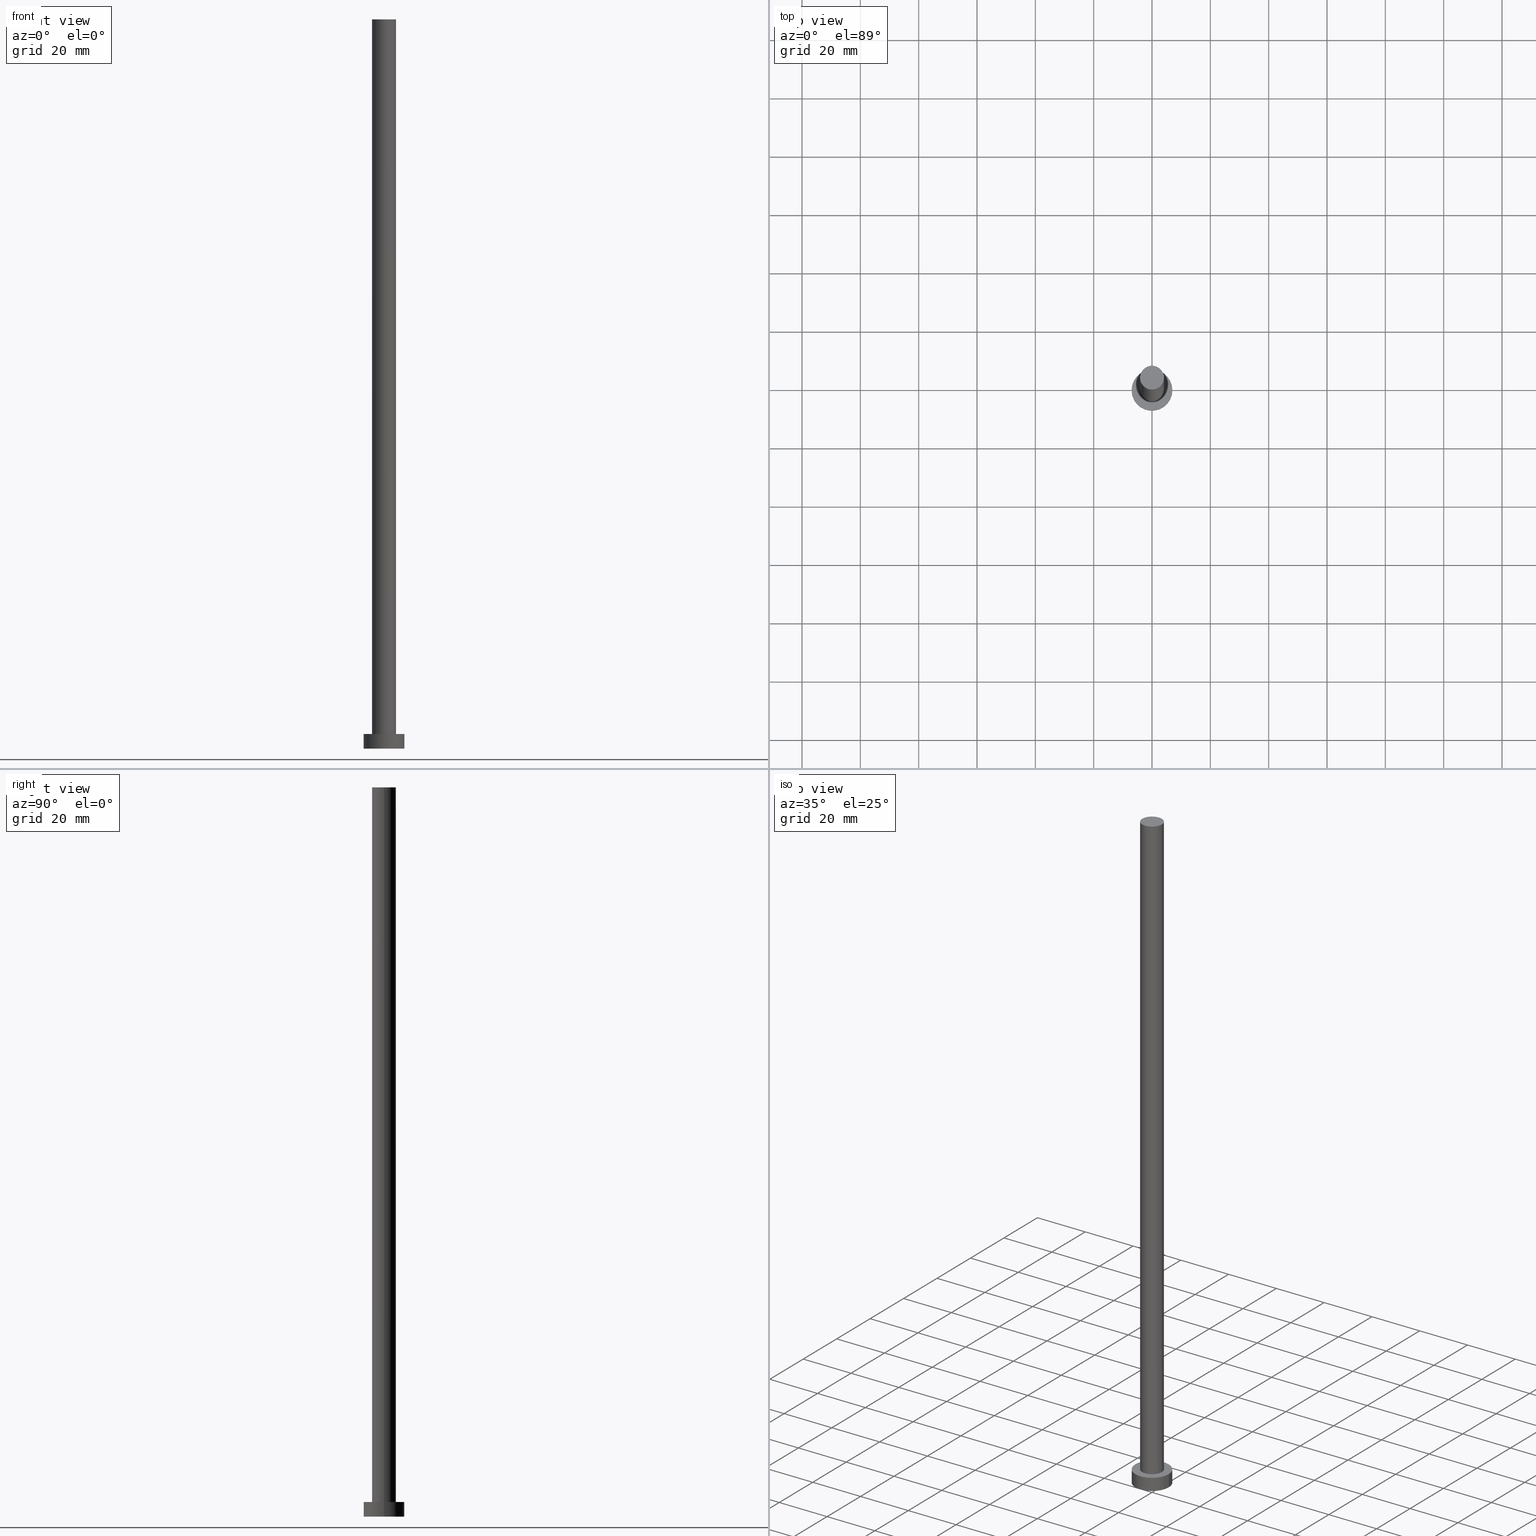
[diagram: canonical four-view strip — front | top / right | iso, engineering-drawing reading convention]
A machine part, canonical four-view strip (front | top / right | iso — engineering-drawing reading convention). The complete STEP part file that produces these views, byte-faithful:
ISO-10303-21;
HEADER;
FILE_DESCRIPTION (( 'STEP AP203' ),
    '1' );
FILE_NAME ('8e17.STEP',
    '2023-02-13T14:21:05',
    ( '' ),
    ( '' ),
    'SwSTEP 2.0',
    'SolidWorks 2019',
    '' );
FILE_SCHEMA (( 'CONFIG_CONTROL_DESIGN' ));
ENDSEC;

DATA;
#1 = CARTESIAN_POINT ( 'NONE',  ( -7.000000000000000000, 0.000000000000000000, 5.000000000000000000 ) ) ;
#2 = PERSON_AND_ORGANIZATION ( #9, #13 ) ;
#3 = EDGE_CURVE ( 'NONE', #57, #202, #38, .T. ) ;
#4 = ADVANCED_BREP_SHAPE_REPRESENTATION ( '8e17', ( #51, #233 ), #199 ) ;
#5 = EDGE_LOOP ( 'NONE', ( #111, #179 ) ) ;
#6 = CIRCLE ( 'NONE', #28, 4.099999999999999645 ) ;
#7 = ORIENTED_EDGE ( 'NONE', *, *, #165, .F. ) ;
#8 = APPROVAL_STATUS ( 'not_yet_approved' ) ;
#9 = PERSON ( 'NEUR�EN�', 'NEUR�EN�', 'NEUR�EN�', ('NEUR�EN�'), ('NEUR�EN�'), ('NEUR�EN�') ) ;
#10 = ORIENTED_EDGE ( 'NONE', *, *, #208, .T. ) ;
#11 = CALENDAR_DATE ( 2023, 13, 2 ) ;
#12 = APPROVAL_DATE_TIME ( #146, #43 ) ;
#13 = ORGANIZATION ( 'NEUR�EN�', 'NEUR�EN�', '' ) ;
#14 = LOCAL_TIME ( 15, 21, 5.000000000000000000, #74 ) ;
#15 = APPROVAL_DATE_TIME ( #222, #236 ) ;
#16 = ADVANCED_FACE ( 'NONE', ( #84 ), #237, .F. ) ;
#17 = CARTESIAN_POINT ( 'NONE',  ( -4.099999999999999645, 0.000000000000000000, 250.0000000000000000 ) ) ;
#18 = CARTESIAN_POINT ( 'NONE',  ( 0.000000000000000000, 0.000000000000000000, 250.0000000000000000 ) ) ;
#19 = PRODUCT_RELATED_PRODUCT_CATEGORY ( 'detail', '', ( #33 ) ) ;
#20 = DIRECTION ( 'NONE',  ( 1.000000000000000000, 0.000000000000000000, 0.000000000000000000 ) ) ;
#21 = DIRECTION ( 'NONE',  ( 0.000000000000000000, 0.000000000000000000, 1.000000000000000000 ) ) ;
#22 = EDGE_CURVE ( 'NONE', #202, #201, #138, .T. ) ;
#23 = CARTESIAN_POINT ( 'NONE',  ( -7.000000000000000000, 0.000000000000000000, 5.000000000000000000 ) ) ;
#24 = CIRCLE ( 'NONE', #162, 7.000000000000000000 ) ;
#25 = ADVANCED_FACE ( 'NONE', ( #136 ), #77, .T. ) ;
#26 = COORDINATED_UNIVERSAL_TIME_OFFSET ( 1, 0, .AHEAD. ) ;
#27 = ORIENTED_EDGE ( 'NONE', *, *, #141, .T. ) ;
#28 = AXIS2_PLACEMENT_3D ( 'NONE', #150, #211, #253 ) ;
#29 = VERTEX_POINT ( 'NONE', #174 ) ;
#30 = EDGE_LOOP ( 'NONE', ( #7, #242, #10, #217 ) ) ;
#31 = CC_DESIGN_DATE_AND_TIME_ASSIGNMENT ( #226, #99, ( #131 ) ) ;
#32 = ORIENTED_EDGE ( 'NONE', *, *, #141, .F. ) ;
#33 = PRODUCT ( '8e17', '8e17', '', ( #40 ) ) ;
#34 = CC_DESIGN_DATE_AND_TIME_ASSIGNMENT ( #155, #89, ( #58 ) ) ;
#35 = PERSON_AND_ORGANIZATION_ROLE ( 'classification_officer' ) ;
#36 = CALENDAR_DATE ( 2023, 13, 2 ) ;
#37 = PERSON_AND_ORGANIZATION ( #9, #13 ) ;
#38 = CIRCLE ( 'NONE', #73, 4.099999999999999645 ) ;
#39 = APPROVAL_ROLE ( '' ) ;
#40 = MECHANICAL_CONTEXT ( 'NONE', #156, 'mechanical' ) ;
#41 = DIRECTION ( 'NONE',  ( 1.000000000000000000, 0.000000000000000000, 0.000000000000000000 ) ) ;
#42 = CARTESIAN_POINT ( 'NONE',  ( 4.099999999999999645, 5.021051876504147385E-16, 250.0000000000000000 ) ) ;
#43 = APPROVAL ( #8, 'NEUR�EN�' ) ;
#44 = DIRECTION ( 'NONE',  ( -0.000000000000000000, -0.000000000000000000, -1.000000000000000000 ) ) ;
#45 = DIRECTION ( 'NONE',  ( 1.000000000000000000, 0.000000000000000000, -0.000000000000000000 ) ) ;
#46 = DIRECTION ( 'NONE',  ( 1.000000000000000000, 0.000000000000000000, 0.000000000000000000 ) ) ;
#47 = CLOSED_SHELL ( 'NONE', ( #194, #176, #25, #223, #16, #135, #169 ) ) ;
#48 = EDGE_LOOP ( 'NONE', ( #144, #198, #159, #116 ) ) ;
#49 = EDGE_CURVE ( 'NONE', #57, #114, #101, .T. ) ;
#50 = ORIENTED_EDGE ( 'NONE', *, *, #208, .F. ) ;
#51 = MANIFOLD_SOLID_BREP ( 'P�idat vysunut�m3', #47 ) ;
#52 = CIRCLE ( 'NONE', #207, 7.000000000000000000 ) ;
#53 = APPROVAL_PERSON_ORGANIZATION ( #249, #126, #104 ) ;
#54 = CC_DESIGN_SECURITY_CLASSIFICATION ( #131, ( #130 ) ) ;
#55 =( NAMED_UNIT ( * ) SI_UNIT ( $, .STERADIAN. ) SOLID_ANGLE_UNIT ( ) );
#56 = ORIENTED_EDGE ( 'NONE', *, *, #165, .T. ) ;
#57 = VERTEX_POINT ( 'NONE', #152 ) ;
#58 = PRODUCT_DEFINITION ( 'NEZN�M�', '', #130, #225 ) ;
#59 = AXIS2_PLACEMENT_3D ( 'NONE', #241, #70, #67 ) ;
#60 = CARTESIAN_POINT ( 'NONE',  ( 0.000000000000000000, 0.000000000000000000, 250.0000000000000000 ) ) ;
#61 = CYLINDRICAL_SURFACE ( 'NONE', #64, 4.099999999999999645 ) ;
#62 = CARTESIAN_POINT ( 'NONE',  ( 0.000000000000000000, 0.000000000000000000, 250.0000000000000000 ) ) ;
#63 = APPLICATION_PROTOCOL_DEFINITION ( 'international standard', 'config_control_design', 1994, #156 ) ;
#64 = AXIS2_PLACEMENT_3D ( 'NONE', #60, #230, #107 ) ;
#65 = CARTESIAN_POINT ( 'NONE',  ( 0.000000000000000000, 0.000000000000000000, 0.000000000000000000 ) ) ;
#66 = DIRECTION ( 'NONE',  ( -0.000000000000000000, -0.000000000000000000, -1.000000000000000000 ) ) ;
#67 = DIRECTION ( 'NONE',  ( 1.000000000000000000, 0.000000000000000000, 0.000000000000000000 ) ) ;
#68 = ORIENTED_EDGE ( 'NONE', *, *, #83, .T. ) ;
#69 = AXIS2_PLACEMENT_3D ( 'NONE', #103, #209, #109 ) ;
#70 = DIRECTION ( 'NONE',  ( 0.000000000000000000, 0.000000000000000000, 1.000000000000000000 ) ) ;
#71 = DIRECTION ( 'NONE',  ( 0.000000000000000000, 0.000000000000000000, 1.000000000000000000 ) ) ;
#72 = COORDINATED_UNIVERSAL_TIME_OFFSET ( 1, 0, .AHEAD. ) ;
#73 = AXIS2_PLACEMENT_3D ( 'NONE', #239, #71, #117 ) ;
#74 = COORDINATED_UNIVERSAL_TIME_OFFSET ( 1, 0, .AHEAD. ) ;
#75 = CC_DESIGN_PERSON_AND_ORGANIZATION_ASSIGNMENT ( #37, #121, ( #33 ) ) ;
#76 = APPROVAL_STATUS ( 'not_yet_approved' ) ;
#77 = CYLINDRICAL_SURFACE ( 'NONE', #167, 7.000000000000000000 ) ;
#78 = CC_DESIGN_PERSON_AND_ORGANIZATION_ASSIGNMENT ( #2, #106, ( #58 ) ) ;
#79 = CARTESIAN_POINT ( 'NONE',  ( -4.099999999999999645, 0.000000000000000000, 5.000000000000000000 ) ) ;
#80 = CARTESIAN_POINT ( 'NONE',  ( 7.000000000000000000, 8.572527594031473190E-16, 5.000000000000000000 ) ) ;
#81 = FACE_OUTER_BOUND ( 'NONE', #221, .T. ) ;
#82 = CARTESIAN_POINT ( 'NONE',  ( 4.099999999999999645, 5.021051876504147385E-16, 5.000000000000000000 ) ) ;
#83 = EDGE_CURVE ( 'NONE', #163, #115, #177, .T. ) ;
#84 = FACE_OUTER_BOUND ( 'NONE', #88, .T. ) ;
#85 = CC_DESIGN_PERSON_AND_ORGANIZATION_ASSIGNMENT ( #145, #35, ( #131 ) ) ;
#86 = CARTESIAN_POINT ( 'NONE',  ( 7.000000000000000000, 8.572527594031473190E-16, 5.000000000000000000 ) ) ;
#87 = VECTOR ( 'NONE', #96, 1000.000000000000000 ) ;
#88 = EDGE_LOOP ( 'NONE', ( #32, #50 ) ) ;
#89 = DATE_TIME_ROLE ( 'creation_date' ) ;
#90 = EDGE_LOOP ( 'NONE', ( #137, #127 ) ) ;
#91 = APPROVAL_ROLE ( '' ) ;
#92 = DIRECTION ( 'NONE',  ( 0.000000000000000000, 0.000000000000000000, 1.000000000000000000 ) ) ;
#93 = EDGE_LOOP ( 'NONE', ( #161, #245, #68, #27 ) ) ;
#94 = CIRCLE ( 'NONE', #213, 7.000000000000000000 ) ;
#95 = PERSON_AND_ORGANIZATION ( #9, #13 ) ;
#96 = DIRECTION ( 'NONE',  ( -0.000000000000000000, -0.000000000000000000, -1.000000000000000000 ) ) ;
#97 = PERSON_AND_ORGANIZATION_ROLE ( 'design_supplier' ) ;
#98 = LOCAL_TIME ( 15, 21, 5.000000000000000000, #72 ) ;
#99 = DATE_TIME_ROLE ( 'classification_date' ) ;
#100 = SHAPE_DEFINITION_REPRESENTATION ( #181, #4 ) ;
#101 = LINE ( 'NONE', #42, #102 ) ;
#102 = VECTOR ( 'NONE', #132, 1000.000000000000000 ) ;
#103 = CARTESIAN_POINT ( 'NONE',  ( 0.000000000000000000, 0.000000000000000000, 5.000000000000000000 ) ) ;
#104 = APPROVAL_ROLE ( '' ) ;
#105 = DIRECTION ( 'NONE',  ( -0.000000000000000000, -0.000000000000000000, -1.000000000000000000 ) ) ;
#106 = PERSON_AND_ORGANIZATION_ROLE ( 'creator' ) ;
#107 = DIRECTION ( 'NONE',  ( -1.000000000000000000, 0.000000000000000000, 0.000000000000000000 ) ) ;
#108 = CALENDAR_DATE ( 2023, 13, 2 ) ;
#109 = DIRECTION ( 'NONE',  ( -1.000000000000000000, 0.000000000000000000, 0.000000000000000000 ) ) ;
#110 = APPROVAL_STATUS ( 'not_yet_approved' ) ;
#111 = ORIENTED_EDGE ( 'NONE', *, *, #166, .F. ) ;
#112 = CC_DESIGN_PERSON_AND_ORGANIZATION_ASSIGNMENT ( #185, #97, ( #130 ) ) ;
#113 = AXIS2_PLACEMENT_3D ( 'NONE', #197, #92, #182 ) ;
#114 = VERTEX_POINT ( 'NONE', #82 ) ;
#115 = VERTEX_POINT ( 'NONE', #122 ) ;
#116 = ORIENTED_EDGE ( 'NONE', *, *, #166, .T. ) ;
#117 = DIRECTION ( 'NONE',  ( 1.000000000000000000, 0.000000000000000000, 0.000000000000000000 ) ) ;
#118 = PERSON_AND_ORGANIZATION_ROLE ( 'creator' ) ;
#119 = CARTESIAN_POINT ( 'NONE',  ( 0.000000000000000000, 0.000000000000000000, 0.000000000000000000 ) ) ;
#120 = LOCAL_TIME ( 15, 21, 5.000000000000000000, #124 ) ;
#121 = PERSON_AND_ORGANIZATION_ROLE ( 'design_owner' ) ;
#122 = CARTESIAN_POINT ( 'NONE',  ( -7.000000000000000000, 0.000000000000000000, 0.000000000000000000 ) ) ;
#123 = CARTESIAN_POINT ( 'NONE',  ( 0.000000000000000000, 0.000000000000000000, 0.000000000000000000 ) ) ;
#124 = COORDINATED_UNIVERSAL_TIME_OFFSET ( 1, 0, .AHEAD. ) ;
#125 = AXIS2_PLACEMENT_3D ( 'NONE', #65, #214, #215 ) ;
#126 = APPROVAL ( #110, 'NEUR�EN�' ) ;
#127 = ORIENTED_EDGE ( 'NONE', *, *, #3, .T. ) ;
#128 = CC_DESIGN_APPROVAL ( #43, ( #130 ) ) ;
#129 = ORIENTED_EDGE ( 'NONE', *, *, #22, .F. ) ;
#130 = PRODUCT_DEFINITION_FORMATION_WITH_SPECIFIED_SOURCE ( 'LIBOVOLN�', '', #33, .NOT_KNOWN. ) ;
#131 = SECURITY_CLASSIFICATION ( '', '', #168 ) ;
#132 = DIRECTION ( 'NONE',  ( -0.000000000000000000, -0.000000000000000000, -1.000000000000000000 ) ) ;
#133 = DIRECTION ( 'NONE',  ( 0.000000000000000000, 0.000000000000000000, 1.000000000000000000 ) ) ;
#134 = DIRECTION ( 'NONE',  ( 0.000000000000000000, 0.000000000000000000, 1.000000000000000000 ) ) ;
#135 = ADVANCED_FACE ( 'NONE', ( #252 ), #61, .T. ) ;
#136 = FACE_OUTER_BOUND ( 'NONE', #93, .T. ) ;
#137 = ORIENTED_EDGE ( 'NONE', *, *, #246, .T. ) ;
#138 = LINE ( 'NONE', #203, #87 ) ;
#139 =( LENGTH_UNIT ( ) NAMED_UNIT ( * ) SI_UNIT ( .MILLI., .METRE. ) );
#140 = ORIENTED_EDGE ( 'NONE', *, *, #219, .T. ) ;
#141 = EDGE_CURVE ( 'NONE', #115, #29, #52, .T. ) ;
#142 = AXIS2_PLACEMENT_3D ( 'NONE', #18, #21, #45 ) ;
#143 = CARTESIAN_POINT ( 'NONE',  ( 0.000000000000000000, 0.000000000000000000, 250.0000000000000000 ) ) ;
#144 = ORIENTED_EDGE ( 'NONE', *, *, #49, .F. ) ;
#145 = PERSON_AND_ORGANIZATION ( #9, #13 ) ;
#146 = DATE_AND_TIME ( #36, #98 ) ;
#147 = DIRECTION ( 'NONE',  ( -0.000000000000000000, -0.000000000000000000, -1.000000000000000000 ) ) ;
#148 = DIRECTION ( 'NONE',  ( 0.000000000000000000, 0.000000000000000000, 1.000000000000000000 ) ) ;
#149 = APPROVAL_DATE_TIME ( #151, #126 ) ;
#150 = CARTESIAN_POINT ( 'NONE',  ( 0.000000000000000000, 0.000000000000000000, 5.000000000000000000 ) ) ;
#151 = DATE_AND_TIME ( #210, #120 ) ;
#152 = CARTESIAN_POINT ( 'NONE',  ( 4.099999999999999645, 5.021051876504147385E-16, 250.0000000000000000 ) ) ;
#153 = CC_DESIGN_APPROVAL ( #236, ( #131 ) ) ;
#154 = DIRECTION ( 'NONE',  ( 0.000000000000000000, 0.000000000000000000, 1.000000000000000000 ) ) ;
#155 = DATE_AND_TIME ( #108, #227 ) ;
#156 = APPLICATION_CONTEXT ( 'configuration controlled 3d designs of mechanical parts and assemblies' ) ;
#157 = LINE ( 'NONE', #86, #224 ) ;
#158 = VERTEX_POINT ( 'NONE', #80 ) ;
#159 = ORIENTED_EDGE ( 'NONE', *, *, #22, .T. ) ;
#160 = ORIENTED_EDGE ( 'NONE', *, *, #49, .T. ) ;
#161 = ORIENTED_EDGE ( 'NONE', *, *, #251, .F. ) ;
#162 = AXIS2_PLACEMENT_3D ( 'NONE', #205, #154, #254 ) ;
#163 = VERTEX_POINT ( 'NONE', #23 ) ;
#164 = APPROVAL_PERSON_ORGANIZATION ( #248, #236, #39 ) ;
#165 = EDGE_CURVE ( 'NONE', #158, #163, #24, .T. ) ;
#166 = EDGE_CURVE ( 'NONE', #201, #114, #6, .T. ) ;
#167 = AXIS2_PLACEMENT_3D ( 'NONE', #234, #105, #190 ) ;
#168 = SECURITY_CLASSIFICATION_LEVEL ( 'unclassified' ) ;
#169 = ADVANCED_FACE ( 'NONE', ( #191 ), #235, .T. ) ;
#170 = DIRECTION ( 'NONE',  ( 0.000000000000000000, 0.000000000000000000, 1.000000000000000000 ) ) ;
#171 = CYLINDRICAL_SURFACE ( 'NONE', #250, 4.099999999999999645 ) ;
#172 = CIRCLE ( 'NONE', #238, 7.000000000000000000 ) ;
#173 = DIRECTION ( 'NONE',  ( -1.000000000000000000, 0.000000000000000000, 0.000000000000000000 ) ) ;
#174 = CARTESIAN_POINT ( 'NONE',  ( 7.000000000000000000, 8.572527594031473190E-16, 0.000000000000000000 ) ) ;
#175 = FACE_OUTER_BOUND ( 'NONE', #184, .T. ) ;
#176 = ADVANCED_FACE ( 'NONE', ( #195 ), #212, .T. ) ;
#177 = LINE ( 'NONE', #1, #243 ) ;
#178 = DIRECTION ( 'NONE',  ( 0.000000000000000000, 0.000000000000000000, 1.000000000000000000 ) ) ;
#179 = ORIENTED_EDGE ( 'NONE', *, *, #229, .F. ) ;
#180 = ORIENTED_EDGE ( 'NONE', *, *, #3, .F. ) ;
#181 = PRODUCT_DEFINITION_SHAPE ( 'NONE', 'NONE',  #58 ) ;
#182 = DIRECTION ( 'NONE',  ( 1.000000000000000000, 0.000000000000000000, -0.000000000000000000 ) ) ;
#183 = APPLICATION_CONTEXT ( 'configuration controlled 3d designs of mechanical parts and assemblies' ) ;
#184 = EDGE_LOOP ( 'NONE', ( #180, #160, #240, #129 ) ) ;
#185 = PERSON_AND_ORGANIZATION ( #9, #13 ) ;
#186 = APPLICATION_PROTOCOL_DEFINITION ( 'international standard', 'config_control_design', 1994, #183 ) ;
#187 = LOCAL_TIME ( 15, 21, 5.000000000000000000, #189 ) ;
#188 = UNCERTAINTY_MEASURE_WITH_UNIT (LENGTH_MEASURE( 1.000000000000000082E-05 ), #139, 'distance_accuracy_value', 'NONE');
#189 = COORDINATED_UNIVERSAL_TIME_OFFSET ( 1, 0, .AHEAD. ) ;
#190 = DIRECTION ( 'NONE',  ( -1.000000000000000000, 0.000000000000000000, 0.000000000000000000 ) ) ;
#191 = FACE_OUTER_BOUND ( 'NONE', #90, .T. ) ;
#192 = CC_DESIGN_PERSON_AND_ORGANIZATION_ASSIGNMENT ( #228, #118, ( #130 ) ) ;
#193 = CARTESIAN_POINT ( 'NONE',  ( 0.000000000000000000, 0.000000000000000000, 0.000000000000000000 ) ) ;
#194 = ADVANCED_FACE ( 'NONE', ( #175 ), #171, .T. ) ;
#195 = FACE_OUTER_BOUND ( 'NONE', #30, .T. ) ;
#196 = AXIS2_PLACEMENT_3D ( 'NONE', #143, #178, #216 ) ;
#197 = CARTESIAN_POINT ( 'NONE',  ( 0.000000000000000000, 0.000000000000000000, 5.000000000000000000 ) ) ;
#198 = ORIENTED_EDGE ( 'NONE', *, *, #246, .F. ) ;
#199 =( GEOMETRIC_REPRESENTATION_CONTEXT ( 3 ) GLOBAL_UNCERTAINTY_ASSIGNED_CONTEXT ( ( #188 ) ) GLOBAL_UNIT_ASSIGNED_CONTEXT ( ( #139, #220, #55 ) ) REPRESENTATION_CONTEXT ( 'NONE', 'WORKASPACE' ) );
#200 = APPROVAL_PERSON_ORGANIZATION ( #95, #43, #91 ) ;
#201 = VERTEX_POINT ( 'NONE', #79 ) ;
#202 = VERTEX_POINT ( 'NONE', #17 ) ;
#203 = CARTESIAN_POINT ( 'NONE',  ( -4.099999999999999645, 0.000000000000000000, 250.0000000000000000 ) ) ;
#204 = CALENDAR_DATE ( 2023, 13, 2 ) ;
#205 = CARTESIAN_POINT ( 'NONE',  ( 0.000000000000000000, 0.000000000000000000, 5.000000000000000000 ) ) ;
#206 = DIRECTION ( 'NONE',  ( 1.000000000000000000, 0.000000000000000000, 0.000000000000000000 ) ) ;
#207 = AXIS2_PLACEMENT_3D ( 'NONE', #193, #134, #41 ) ;
#208 = EDGE_CURVE ( 'NONE', #29, #115, #94, .T. ) ;
#209 = DIRECTION ( 'NONE',  ( -0.000000000000000000, -0.000000000000000000, -1.000000000000000000 ) ) ;
#210 = CALENDAR_DATE ( 2023, 13, 2 ) ;
#211 = DIRECTION ( 'NONE',  ( 0.000000000000000000, 0.000000000000000000, 1.000000000000000000 ) ) ;
#212 = CYLINDRICAL_SURFACE ( 'NONE', #69, 7.000000000000000000 ) ;
#213 = AXIS2_PLACEMENT_3D ( 'NONE', #123, #148, #46 ) ;
#214 = DIRECTION ( 'NONE',  ( 0.000000000000000000, 0.000000000000000000, 1.000000000000000000 ) ) ;
#215 = DIRECTION ( 'NONE',  ( 1.000000000000000000, 0.000000000000000000, -0.000000000000000000 ) ) ;
#216 = DIRECTION ( 'NONE',  ( 1.000000000000000000, 0.000000000000000000, 0.000000000000000000 ) ) ;
#217 = ORIENTED_EDGE ( 'NONE', *, *, #83, .F. ) ;
#218 = CIRCLE ( 'NONE', #59, 4.099999999999999645 ) ;
#219 = EDGE_CURVE ( 'NONE', #163, #158, #172, .T. ) ;
#220 =( NAMED_UNIT ( * ) PLANE_ANGLE_UNIT ( ) SI_UNIT ( $, .RADIAN. ) );
#221 = EDGE_LOOP ( 'NONE', ( #140, #56 ) ) ;
#222 = DATE_AND_TIME ( #11, #187 ) ;
#223 = ADVANCED_FACE ( 'NONE', ( #232, #81 ), #244, .T. ) ;
#224 = VECTOR ( 'NONE', #66, 1000.000000000000000 ) ;
#225 = DESIGN_CONTEXT ( 'detailed design', #183, 'design' ) ;
#226 = DATE_AND_TIME ( #204, #14 ) ;
#227 = LOCAL_TIME ( 15, 21, 5.000000000000000000, #26 ) ;
#228 = PERSON_AND_ORGANIZATION ( #9, #13 ) ;
#229 = EDGE_CURVE ( 'NONE', #114, #201, #218, .T. ) ;
#230 = DIRECTION ( 'NONE',  ( -0.000000000000000000, -0.000000000000000000, -1.000000000000000000 ) ) ;
#231 = CARTESIAN_POINT ( 'NONE',  ( 0.000000000000000000, 0.000000000000000000, 5.000000000000000000 ) ) ;
#232 = FACE_BOUND ( 'NONE', #5, .T. ) ;
#233 = AXIS2_PLACEMENT_3D ( 'NONE', #119, #170, #20 ) ;
#234 = CARTESIAN_POINT ( 'NONE',  ( 0.000000000000000000, 0.000000000000000000, 5.000000000000000000 ) ) ;
#235 = PLANE ( 'NONE',  #142 ) ;
#236 = APPROVAL ( #76, 'NEUR�EN�' ) ;
#237 = PLANE ( 'NONE',  #125 ) ;
#238 = AXIS2_PLACEMENT_3D ( 'NONE', #231, #133, #206 ) ;
#239 = CARTESIAN_POINT ( 'NONE',  ( 0.000000000000000000, 0.000000000000000000, 250.0000000000000000 ) ) ;
#240 = ORIENTED_EDGE ( 'NONE', *, *, #229, .T. ) ;
#241 = CARTESIAN_POINT ( 'NONE',  ( 0.000000000000000000, 0.000000000000000000, 5.000000000000000000 ) ) ;
#242 = ORIENTED_EDGE ( 'NONE', *, *, #251, .T. ) ;
#243 = VECTOR ( 'NONE', #147, 1000.000000000000000 ) ;
#244 = PLANE ( 'NONE',  #113 ) ;
#245 = ORIENTED_EDGE ( 'NONE', *, *, #219, .F. ) ;
#246 = EDGE_CURVE ( 'NONE', #202, #57, #247, .T. ) ;
#247 = CIRCLE ( 'NONE', #196, 4.099999999999999645 ) ;
#248 = PERSON_AND_ORGANIZATION ( #9, #13 ) ;
#249 = PERSON_AND_ORGANIZATION ( #9, #13 ) ;
#250 = AXIS2_PLACEMENT_3D ( 'NONE', #62, #44, #173 ) ;
#251 = EDGE_CURVE ( 'NONE', #158, #29, #157, .T. ) ;
#252 = FACE_OUTER_BOUND ( 'NONE', #48, .T. ) ;
#253 = DIRECTION ( 'NONE',  ( 1.000000000000000000, 0.000000000000000000, 0.000000000000000000 ) ) ;
#254 = DIRECTION ( 'NONE',  ( 1.000000000000000000, 0.000000000000000000, 0.000000000000000000 ) ) ;
#255 = CC_DESIGN_APPROVAL ( #126, ( #58 ) ) ;
ENDSEC;
END-ISO-10303-21;
